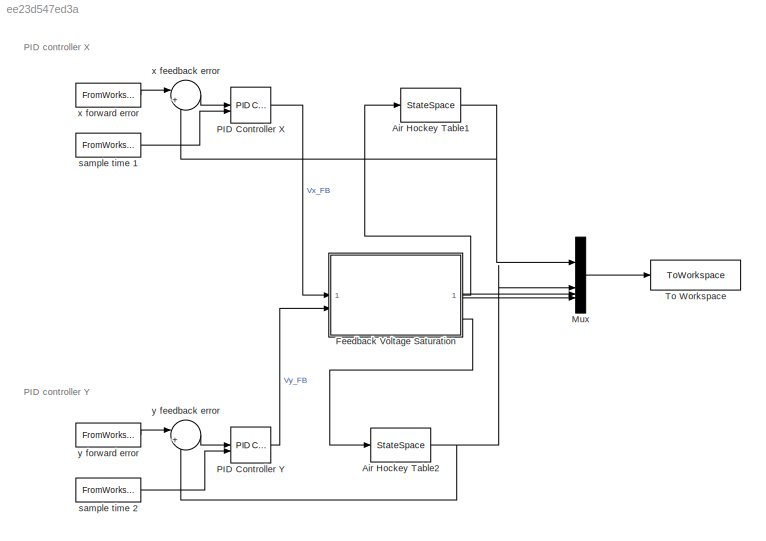
MODEL slx_ee23d547ed3a
KIND model
CONFIG AbsTol = auto
CONFIG EnableMultiTasking = off
CONFIG FixedStep = auto
CONFIG MaxStep = auto
CONFIG MinStep = auto
CONFIG RelTol = 1e-3
CONFIG SampleTimeConstraint = Unconstrained
CONFIG SolverName = VariableStepAuto
CONFIG StartTime = 0.0
CONFIG StopTime = max(data.Time_ms_)/1000
BLOCK [StateSpace] Air Hockey Table1
  A = A_X
  B = B_X
  C = C_X
  D = D_X
  InitialCondition = [0;0;0]
BLOCK [StateSpace] Air Hockey Table2
  A = A_X
  B = B_X
  C = C_X
  D = D_X
  InitialCondition = [0;0;0]
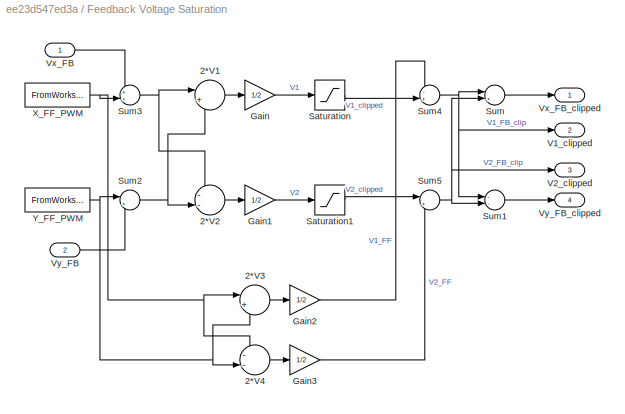
BLOCK [SubSystem] Feedback Voltage Saturation
BLOCK [Sum] Feedback Voltage Saturation/2*V1
  Inputs = |+-
  NameLocation = top
BLOCK [Sum] Feedback Voltage Saturation/2*V2
  Inputs = --|
BLOCK [Sum] Feedback Voltage Saturation/2*V3
  Inputs = |+-
  NameLocation = top
BLOCK [Sum] Feedback Voltage Saturation/2*V4
  Inputs = --|
BLOCK [Gain] Feedback Voltage Saturation/Gain
  Gain = 1/2
BLOCK [Gain] Feedback Voltage Saturation/Gain1
  Gain = 1/2
BLOCK [Gain] Feedback Voltage Saturation/Gain2
  Gain = 1/2
BLOCK [Gain] Feedback Voltage Saturation/Gain3
  Gain = 1/2
BLOCK [Saturate] Feedback Voltage Saturation/Saturation
  LowerLimit = -24
  UpperLimit = 24
BLOCK [Saturate] Feedback Voltage Saturation/Saturation1
  LowerLimit = -24
  UpperLimit = 24
BLOCK [Sum] Feedback Voltage Saturation/Sum
  Inputs = |+-
BLOCK [Sum] Feedback Voltage Saturation/Sum1
  Inputs = --|
BLOCK [Sum] Feedback Voltage Saturation/Sum2
  Inputs = |++
BLOCK [Sum] Feedback Voltage Saturation/Sum3
  Inputs = ++|
BLOCK [Sum] Feedback Voltage Saturation/Sum4
  Inputs = -+|
BLOCK [Sum] Feedback Voltage Saturation/Sum5
  Inputs = |+-
BLOCK [Outport] Feedback Voltage Saturation/V1_clipped
  Port = 2
BLOCK [Outport] Feedback Voltage Saturation/V2_clipped
  Port = 3
BLOCK [Inport] Feedback Voltage Saturation/Vx_FB
BLOCK [Outport] Feedback Voltage Saturation/Vx_FB_clipped
BLOCK [Inport] Feedback Voltage Saturation/Vy_FB
  Port = 2
BLOCK [Outport] Feedback Voltage Saturation/Vy_FB_clipped
  Port = 4
BLOCK [FromWorkspace] Feedback Voltage Saturation/X_FF_PWM
  VariableName = [data.Time_ms_/1000, data.X_PWM*24]
BLOCK [FromWorkspace] Feedback Voltage Saturation/Y_FF_PWM
  VariableName = [data.Time_ms_/1000, data.Y_PWM*24]
BLOCK [Mux] Mux
  DisplayOption = bar
BLOCK [Reference] PID Controller X  REF=slpidlib/PID Controller
  LibrarySourceBlock = simulink/Continuous/PID Controller
  SourceBlock = slpidlib/PID Controller
  SourceType = PID 1dof
BLOCK [Reference] PID Controller Y  REF=slpidlib/PID Controller
  LibrarySourceBlock = simulink/Continuous/PID Controller
  SourceBlock = slpidlib/PID Controller
  SourceType = PID 1dof
BLOCK [ToWorkspace] To Workspace
  FixptAsFi = on
  MaxDataPoints = inf
  SampleTime = -1
  SaveFormat = Timeseries
  VariableName = simout
BLOCK [FromWorkspace] sample time 1
  VariableName = [data.Time_ms_/1000, data.dt/1000]
BLOCK [FromWorkspace] sample time 2
  VariableName = [data.Time_ms_/1000, data.dt/1000]
BLOCK [Sum] x feedback error
  Inputs = |+-
  NameLocation = top
BLOCK [FromWorkspace] x forward error
  VariableName = [data.Time_ms_/1000, data.x_error]
BLOCK [Sum] y feedback error
  Inputs = |+-
BLOCK [FromWorkspace] y forward error
  VariableName = [data.Time_ms_/1000, data.y_error]
ANNOTATION (root): PID controller X
ANNOTATION (root): PID controller Y
NET Air Hockey Table1:1 -> Mux:1, x feedback error:2
NET Air Hockey Table2:1 -> Mux:2, y feedback error:2
LINE Feedback Voltage Saturation/2*V1:1 -> Feedback Voltage Saturation/Gain:1
LINE Feedback Voltage Saturation/2*V2:1 -> Feedback Voltage Saturation/Gain1:1
LINE Feedback Voltage Saturation/2*V3:1 -> Feedback Voltage Saturation/Gain2:1
LINE Feedback Voltage Saturation/2*V4:1 -> Feedback Voltage Saturation/Gain3:1
LINE Feedback Voltage Saturation/Gain1:1 -> Feedback Voltage Saturation/Saturation1:1
LINE Feedback Voltage Saturation/Gain2:1 -> Feedback Voltage Saturation/Sum4:1
LINE Feedback Voltage Saturation/Gain3:1 -> Feedback Voltage Saturation/Sum5:2
LINE Feedback Voltage Saturation/Gain:1 -> Feedback Voltage Saturation/Saturation:1
LINE Feedback Voltage Saturation/Saturation1:1 -> Feedback Voltage Saturation/Sum5:1
LINE Feedback Voltage Saturation/Saturation:1 -> Feedback Voltage Saturation/Sum4:2
LINE Feedback Voltage Saturation/Sum1:1 -> Feedback Voltage Saturation/Vy_FB_clipped:1
NET Feedback Voltage Saturation/Sum2:1 -> Feedback Voltage Saturation/2*V1:2, Feedback Voltage Saturation/2*V2:2
NET Feedback Voltage Saturation/Sum3:1 -> Feedback Voltage Saturation/2*V1:1, Feedback Voltage Saturation/2*V2:1
NET Feedback Voltage Saturation/Sum4:1 -> Feedback Voltage Saturation/Sum1:1, Feedback Voltage Saturation/Sum:1, Feedback Voltage Saturation/V1_clipped:1
NET Feedback Voltage Saturation/Sum5:1 -> Feedback Voltage Saturation/Sum1:2, Feedback Voltage Saturation/Sum:2, Feedback Voltage Saturation/V2_clipped:1
LINE Feedback Voltage Saturation/Sum:1 -> Feedback Voltage Saturation/Vx_FB_clipped:1
LINE Feedback Voltage Saturation/Vx_FB:1 -> Feedback Voltage Saturation/Sum3:1
LINE Feedback Voltage Saturation/Vy_FB:1 -> Feedback Voltage Saturation/Sum2:2
NET Feedback Voltage Saturation/X_FF_PWM:1 -> Feedback Voltage Saturation/2*V3:1, Feedback Voltage Saturation/2*V4:1, Feedback Voltage Saturation/Sum3:2
NET Feedback Voltage Saturation/Y_FF_PWM:1 -> Feedback Voltage Saturation/2*V3:2, Feedback Voltage Saturation/2*V4:2, Feedback Voltage Saturation/Sum2:1
LINE Feedback Voltage Saturation:1 -> Air Hockey Table1:1
LINE Feedback Voltage Saturation:2 -> Mux:3
LINE Feedback Voltage Saturation:3 -> Mux:4
LINE Feedback Voltage Saturation:4 -> Air Hockey Table2:1
LINE Mux:1 -> To Workspace:1
LINE PID Controller X:1 -> Feedback Voltage Saturation:1
LINE PID Controller Y:1 -> Feedback Voltage Saturation:2
LINE sample time 1:1 -> PID Controller X:2
LINE sample time 2:1 -> PID Controller Y:2
LINE x feedback error:1 -> PID Controller X:1
LINE x forward error:1 -> x feedback error:1
LINE y feedback error:1 -> PID Controller Y:1
LINE y forward error:1 -> y feedback error:1
note: NET lines group one-source signal fan-out (src -> all destinations, sorted); 1:1 wires keep LINE
